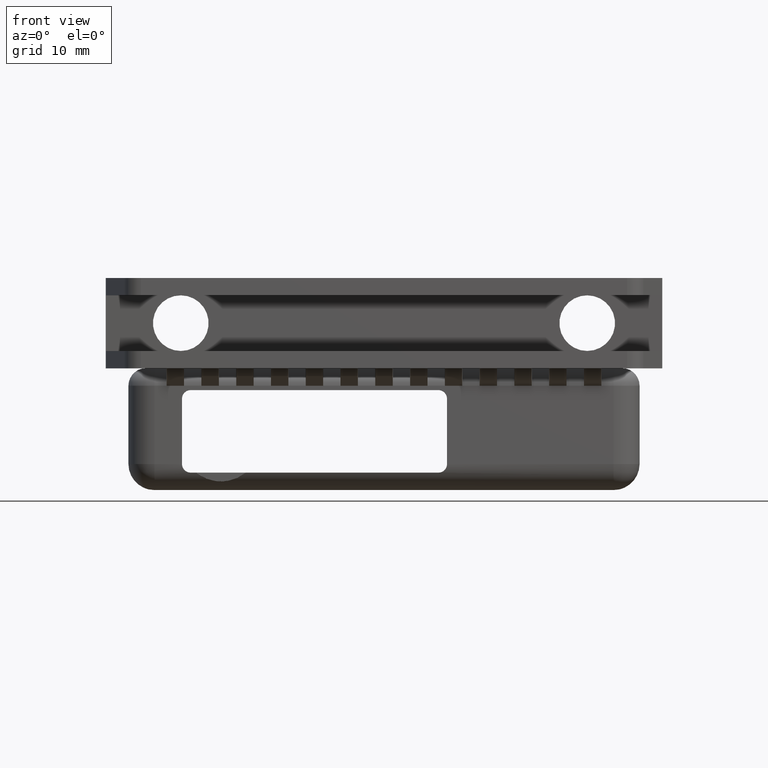
[diagram: clean part render]
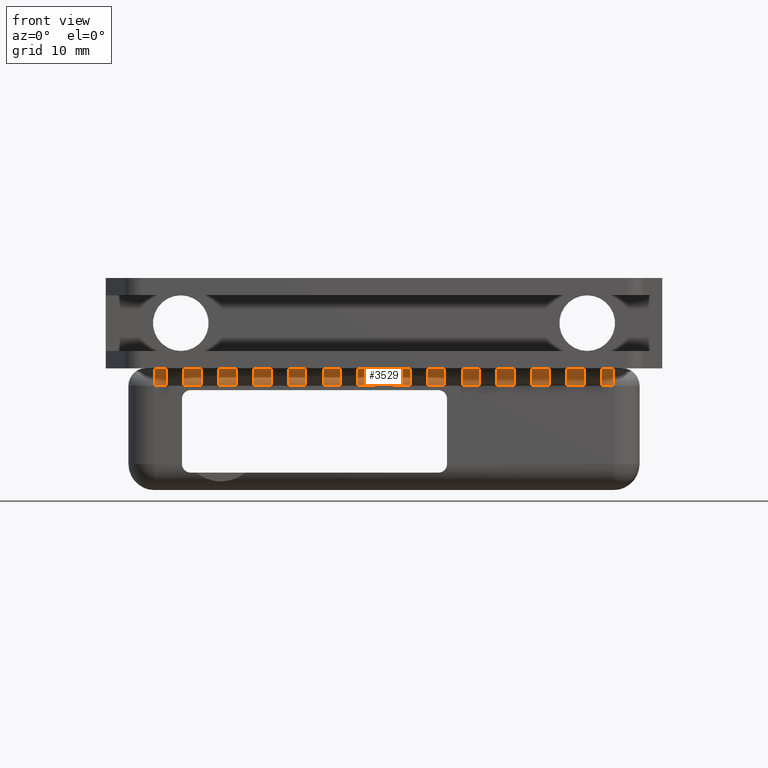
[diagram: same view with one face highlighted and labeled with its STEP entity id]
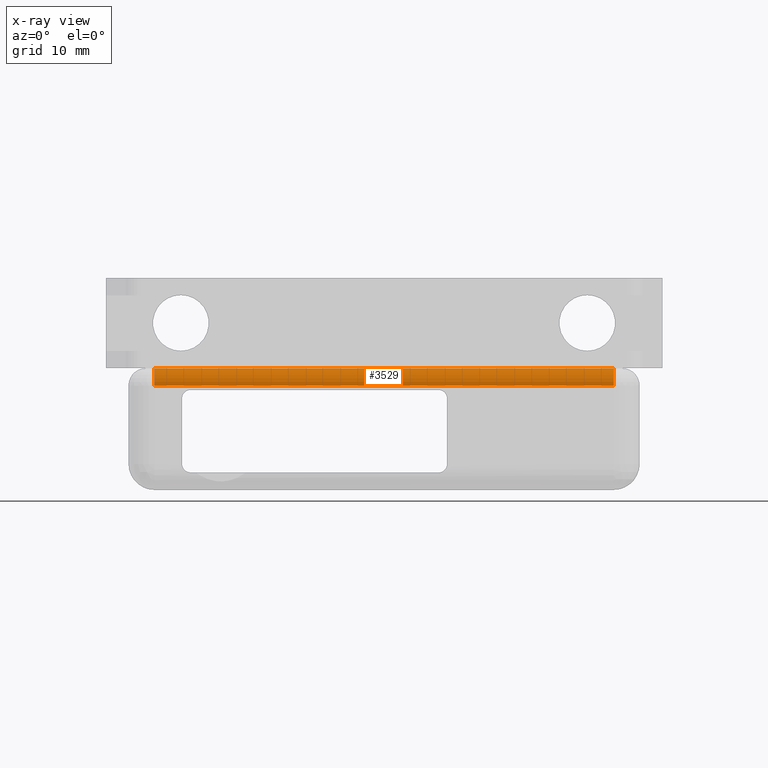
[diagram: x-ray of the same camera — body ghosted, the highlighted face saturated]
A machine part, front view. The second image highlights one B-rep face of the part: STEP entity #3529.
The next image is the same camera in x-ray: the body ghosted, the highlighted face saturated — about 0% of this face is hidden behind the body in this view.
In plain terms, the highlighted cylindrical surface (edge-blend (fillet) strip) has radius 2 mm, axis along (-1, 0, -0).
Its self-contained STEP definition (entity closure, byte-faithful):
#464=CIRCLE('',#3723,0.2);
#467=CIRCLE('',#3727,0.2);
#594=CYLINDRICAL_SURFACE('',#3726,0.2);
#663=VERTEX_POINT('',#4903);
#664=VERTEX_POINT('',#4904);
#665=VERTEX_POINT('',#4909);
#666=VERTEX_POINT('',#4910);
#991=VECTOR('',#4075,1.);
#992=VECTOR('',#4076,1.);
#1306=LINE('',#4911,#991);
#1307=LINE('',#4912,#992);
#1623=EDGE_CURVE('',#663,#664,#464,.T.);
#1626=EDGE_CURVE('',#665,#666,#467,.T.);
#1627=EDGE_CURVE('',#666,#664,#1306,.T.);
#1628=EDGE_CURVE('',#663,#665,#1307,.T.);
#2153=ORIENTED_EDGE('',*,*,#1626,.T.);
#2154=ORIENTED_EDGE('',*,*,#1627,.T.);
#2155=ORIENTED_EDGE('',*,*,#1623,.F.);
#2156=ORIENTED_EDGE('',*,*,#1628,.T.);
#3137=EDGE_LOOP('',(#2153,#2154,#2155,#2156));
#3333=FACE_BOUND('',#3137,.T.);
#3529=ADVANCED_FACE('',(#3333),#594,.T.);
#3723=AXIS2_PLACEMENT_3D('',#4902,#4065,#4066);
#3726=AXIS2_PLACEMENT_3D('',#4907,#4071,#4072);
#3727=AXIS2_PLACEMENT_3D('',#4908,#4073,#4074);
#4065=DIRECTION('',(1.,0.,4.32148745468753E-032));
#4066=DIRECTION('',(0.,0.,0.2));
#4071=DIRECTION('',(-1.,0.,-2.8106722626267E-033));
#4072=DIRECTION('',(0.,-0.14142135623731,0.141421356237309));
#4073=DIRECTION('',(1.,0.,2.8106722626267E-033));
#4074=DIRECTION('',(0.,0.,0.2));
#4075=DIRECTION('',(1.,0.,2.8106722626267E-033));
#4076=DIRECTION('',(-1.,0.,-2.8106722626267E-033));
#4902=CARTESIAN_POINT('',(2.64,-1.725,1.2));
#4903=CARTESIAN_POINT('',(2.64,-1.725,1.4));
#4904=CARTESIAN_POINT('',(2.64,-1.925,1.2));
#4907=CARTESIAN_POINT('',(6.93889390390723E-018,-1.725,1.2));
#4908=CARTESIAN_POINT('',(-2.64,-1.725,1.2));
#4909=CARTESIAN_POINT('',(-2.64,-1.725,1.4));
#4910=CARTESIAN_POINT('',(-2.64,-1.925,1.2));
#4911=CARTESIAN_POINT('',(6.93889390390723E-018,-1.925,1.2));
#4912=CARTESIAN_POINT('',(6.93889390390723E-018,-1.725,1.4));